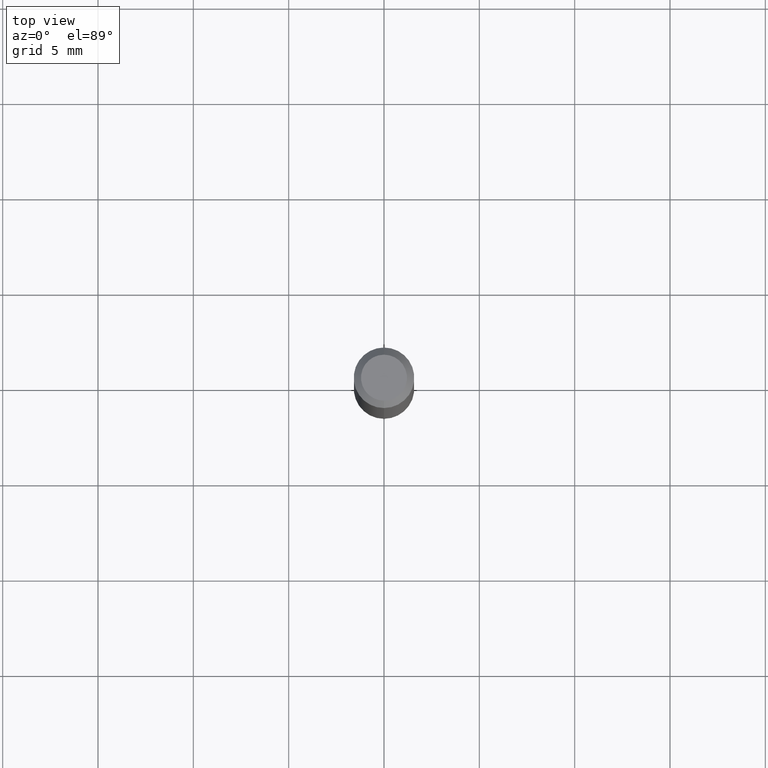
[diagram: clean part render]
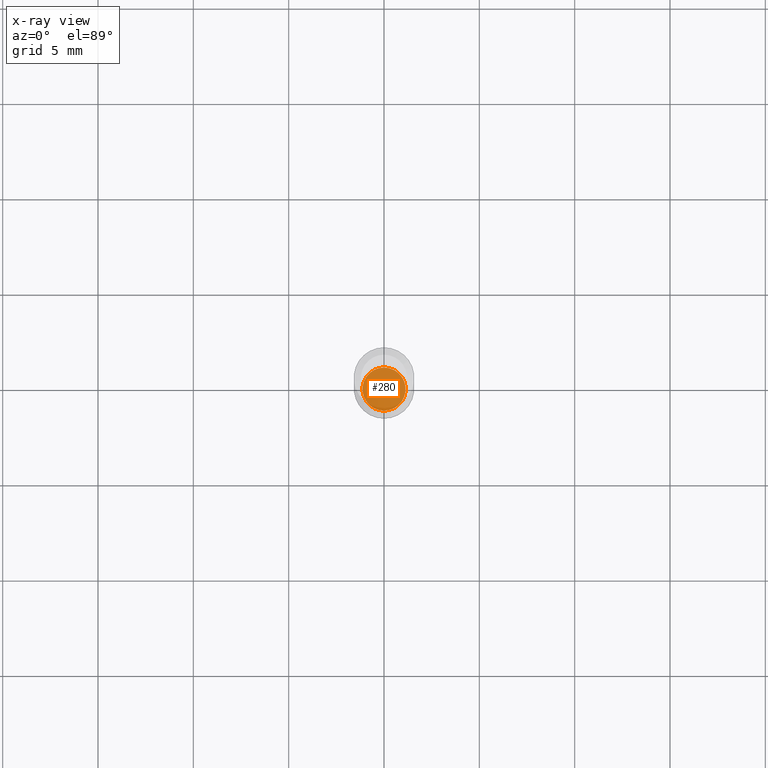
[diagram: x-ray — body ghosted, one internal face saturated and labeled with its STEP entity id]
A machine part, top view, then the same camera in x-ray: the body is ghosted and one INTERNAL B-rep face — a face not visible from any outside direction — is saturated and labeled: STEP entity #280.
In plain terms, the highlighted planar face has unit normal (-0, 0, 1).
Its self-contained STEP definition (entity closure, byte-faithful):
#17 = FACE_OUTER_BOUND ( 'NONE', #285, .T. ) ;
#20 = DIRECTION ( 'NONE',  ( -6.982962677686266711E-15, -1.000000000000000000, 6.138984255425318536E-15 ) ) ;
#39 = ORIENTED_EDGE ( 'NONE', *, *, #442, .F. ) ;
#53 = CIRCLE ( 'NONE', #480, 0.04449999999999994238 ) ;
#113 = CARTESIAN_POINT ( 'NONE',  ( 3.179678742526777547E-16, 0.04449999999999518230, -1.365000000000000435 ) ) ;
#127 = CARTESIAN_POINT ( 'NONE',  ( -3.107418391570051034E-16, -0.04450000000000470940, -1.364999999999999769 ) ) ;
#143 = VERTEX_POINT ( 'NONE', #127 ) ;
#144 = AXIS2_PLACEMENT_3D ( 'NONE', #181, #339, #483 ) ;
#181 = CARTESIAN_POINT ( 'NONE',  ( 3.337973586763344623E-29, -4.766002822548138287E-15, -1.364999999999999991 ) ) ;
#182 = CIRCLE ( 'NONE', #464, 0.04449999999999994238 ) ;
#249 = EDGE_CURVE ( 'NONE', #143, #465, #53, .T. ) ;
#252 = CARTESIAN_POINT ( 'NONE',  ( 3.337973586763344623E-29, -4.766002822548138287E-15, -1.364999999999999991 ) ) ;
#265 = CARTESIAN_POINT ( 'NONE',  ( 3.337973586763344623E-29, -4.766002822548138287E-15, -1.364999999999999991 ) ) ;
#280 = ADVANCED_FACE ( 'NONE', ( #17 ), #398, .F. ) ;
#282 = DIRECTION ( 'NONE',  ( -2.445401895064720952E-29, 3.491577159375925381E-15, 1.000000000000000000 ) ) ;
#285 = EDGE_LOOP ( 'NONE', ( #428, #39 ) ) ;
#339 = DIRECTION ( 'NONE',  ( -2.445401895064720671E-29, 3.491577159375925381E-15, 1.000000000000000000 ) ) ;
#375 = DIRECTION ( 'NONE',  ( -2.445401895064720952E-29, 3.491577159375925381E-15, 1.000000000000000000 ) ) ;
#398 = PLANE ( 'NONE',  #144 ) ;
#406 = DIRECTION ( 'NONE',  ( -6.982962677686266711E-15, -1.000000000000000000, 6.138984255425318536E-15 ) ) ;
#428 = ORIENTED_EDGE ( 'NONE', *, *, #249, .F. ) ;
#442 = EDGE_CURVE ( 'NONE', #465, #143, #182, .T. ) ;
#464 = AXIS2_PLACEMENT_3D ( 'NONE', #265, #375, #20 ) ;
#465 = VERTEX_POINT ( 'NONE', #113 ) ;
#480 = AXIS2_PLACEMENT_3D ( 'NONE', #252, #282, #406 ) ;
#483 = DIRECTION ( 'NONE',  ( -6.982962677686265922E-15, -1.000000000000000000, 3.491577159375925381E-15 ) ) ;